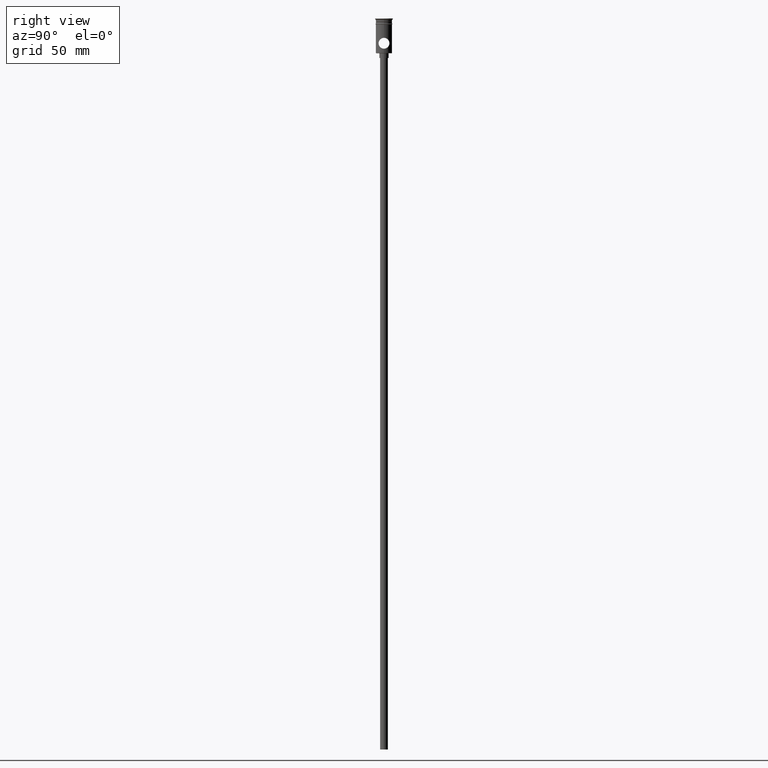
[diagram: clean part render]
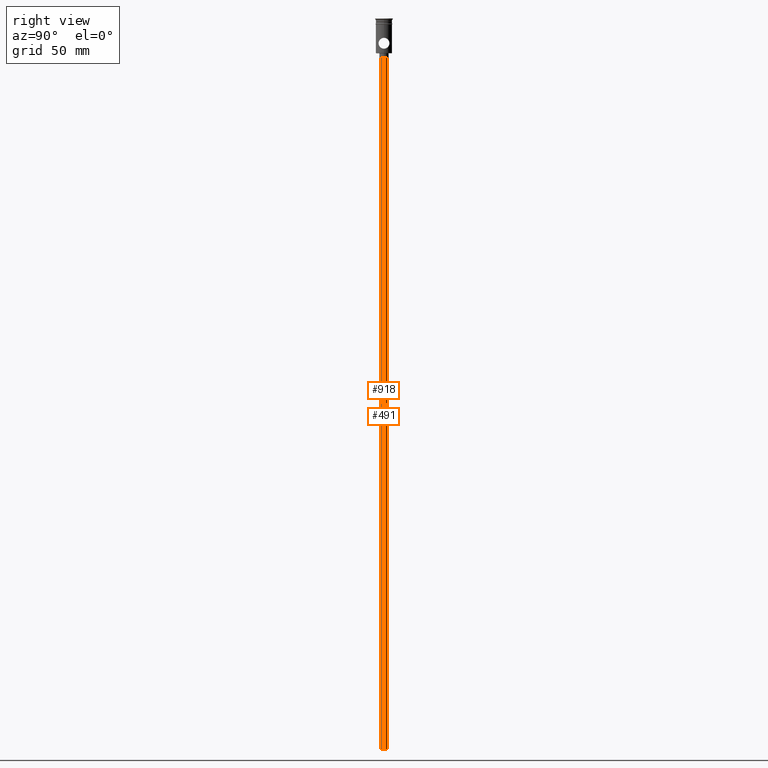
[diagram: same view with one multi-face feature highlighted, each face labeled with its STEP entity id]
A machine part, right view. The highlighted faces form ONE feature: a constant-radius fillet chain: 2 tangent blend faces with common blend radius 2.5 mm. The faces share edges in the B-rep.
Their STEP definitions:
[1] entity #491 (Cylinder):
#114 = AXIS2_PLACEMENT_3D ( 'NONE', #1199, #1090, #416 ) ;
#172 = VECTOR ( 'NONE', #207, 1000.000000000000000 ) ;
#185 = CARTESIAN_POINT ( 'NONE',  ( -2.500000000000000000, 3.061616997868383141E-16, -472.5000000000000568 ) ) ;
#207 = DIRECTION ( 'NONE',  ( -0.000000000000000000, -0.000000000000000000, 1.000000000000000000 ) ) ;
#244 = VERTEX_POINT ( 'NONE', #261 ) ;
#247 = DIRECTION ( 'NONE',  ( 0.000000000000000000, 0.000000000000000000, -1.000000000000000000 ) ) ;
#261 = CARTESIAN_POINT ( 'NONE',  ( 2.500000000000000000, 0.000000000000000000, -25.50000000000000000 ) ) ;
#273 = EDGE_LOOP ( 'NONE', ( #1022, #352, #845, #1259 ) ) ;
#324 = CARTESIAN_POINT ( 'NONE',  ( 2.500000000000000000, 0.000000000000000000, -472.5000000000000568 ) ) ;
#352 = ORIENTED_EDGE ( 'NONE', *, *, #499, .T. ) ;
#395 = CIRCLE ( 'NONE', #1456, 2.500000000000000000 ) ;
#415 = CYLINDRICAL_SURFACE ( 'NONE', #1073, 2.500000000000000000 ) ;
#416 = DIRECTION ( 'NONE',  ( -1.000000000000000000, 0.000000000000000000, 0.000000000000000000 ) ) ;
#425 = EDGE_CURVE ( 'NONE', #497, #244, #1007, .T. ) ;
#476 = DIRECTION ( 'NONE',  ( -1.000000000000000000, 0.000000000000000000, 0.000000000000000000 ) ) ;
#491 = ADVANCED_FACE ( 'NONE', ( #724 ), #415, .T. ) ;
#497 = VERTEX_POINT ( 'NONE', #975 ) ;
#499 = EDGE_CURVE ( 'NONE', #1204, #664, #754, .T. ) ;
#521 = DIRECTION ( 'NONE',  ( 1.000000000000000000, 0.000000000000000000, 0.000000000000000000 ) ) ;
#664 = VERTEX_POINT ( 'NONE', #1261 ) ;
#716 = CIRCLE ( 'NONE', #114, 2.500000000000000000 ) ;
#724 = FACE_OUTER_BOUND ( 'NONE', #273, .T. ) ;
#754 = LINE ( 'NONE', #185, #1289 ) ;
#837 = DIRECTION ( 'NONE',  ( -0.000000000000000000, -0.000000000000000000, 1.000000000000000000 ) ) ;
#845 = ORIENTED_EDGE ( 'NONE', *, *, #1137, .T. ) ;
#858 = DIRECTION ( 'NONE',  ( -0.000000000000000000, -0.000000000000000000, 1.000000000000000000 ) ) ;
#859 = EDGE_CURVE ( 'NONE', #1204, #497, #716, .T. ) ;
#928 = CARTESIAN_POINT ( 'NONE',  ( 0.000000000000000000, 0.000000000000000000, -25.50000000000000000 ) ) ;
#959 = CARTESIAN_POINT ( 'NONE',  ( 0.000000000000000000, 0.000000000000000000, -472.5000000000000568 ) ) ;
#975 = CARTESIAN_POINT ( 'NONE',  ( 2.500000000000000000, 0.000000000000000000, -472.5000000000000568 ) ) ;
#1007 = LINE ( 'NONE', #324, #172 ) ;
#1022 = ORIENTED_EDGE ( 'NONE', *, *, #859, .F. ) ;
#1073 = AXIS2_PLACEMENT_3D ( 'NONE', #959, #837, #521 ) ;
#1090 = DIRECTION ( 'NONE',  ( 0.000000000000000000, 0.000000000000000000, -1.000000000000000000 ) ) ;
#1137 = EDGE_CURVE ( 'NONE', #664, #244, #395, .T. ) ;
#1199 = CARTESIAN_POINT ( 'NONE',  ( 0.000000000000000000, 0.000000000000000000, -472.5000000000000568 ) ) ;
#1204 = VERTEX_POINT ( 'NONE', #1231 ) ;
#1231 = CARTESIAN_POINT ( 'NONE',  ( -2.500000000000000000, 3.061616997868383141E-16, -472.5000000000000568 ) ) ;
#1259 = ORIENTED_EDGE ( 'NONE', *, *, #425, .F. ) ;
#1261 = CARTESIAN_POINT ( 'NONE',  ( -2.500000000000000000, 3.061616997868383141E-16, -25.50000000000000000 ) ) ;
#1289 = VECTOR ( 'NONE', #858, 1000.000000000000000 ) ;
#1456 = AXIS2_PLACEMENT_3D ( 'NONE', #928, #247, #476 ) ;
[2] entity #918 (Cylinder):
#25 = EDGE_LOOP ( 'NONE', ( #678, #459, #1328, #929 ) ) ;
#75 = DIRECTION ( 'NONE',  ( 0.000000000000000000, 0.000000000000000000, -1.000000000000000000 ) ) ;
#89 = DIRECTION ( 'NONE',  ( -1.000000000000000000, 0.000000000000000000, 0.000000000000000000 ) ) ;
#172 = VECTOR ( 'NONE', #207, 1000.000000000000000 ) ;
#175 = AXIS2_PLACEMENT_3D ( 'NONE', #286, #75, #89 ) ;
#185 = CARTESIAN_POINT ( 'NONE',  ( -2.500000000000000000, 3.061616997868383141E-16, -472.5000000000000568 ) ) ;
#207 = DIRECTION ( 'NONE',  ( -0.000000000000000000, -0.000000000000000000, 1.000000000000000000 ) ) ;
#244 = VERTEX_POINT ( 'NONE', #261 ) ;
#261 = CARTESIAN_POINT ( 'NONE',  ( 2.500000000000000000, 0.000000000000000000, -25.50000000000000000 ) ) ;
#286 = CARTESIAN_POINT ( 'NONE',  ( 0.000000000000000000, 0.000000000000000000, -472.5000000000000568 ) ) ;
#308 = EDGE_CURVE ( 'NONE', #497, #1204, #564, .T. ) ;
#314 = CARTESIAN_POINT ( 'NONE',  ( 0.000000000000000000, 0.000000000000000000, -472.5000000000000568 ) ) ;
#324 = CARTESIAN_POINT ( 'NONE',  ( 2.500000000000000000, 0.000000000000000000, -472.5000000000000568 ) ) ;
#354 = CIRCLE ( 'NONE', #1171, 2.500000000000000000 ) ;
#425 = EDGE_CURVE ( 'NONE', #497, #244, #1007, .T. ) ;
#459 = ORIENTED_EDGE ( 'NONE', *, *, #308, .F. ) ;
#492 = DIRECTION ( 'NONE',  ( 0.000000000000000000, 0.000000000000000000, -1.000000000000000000 ) ) ;
#497 = VERTEX_POINT ( 'NONE', #975 ) ;
#499 = EDGE_CURVE ( 'NONE', #1204, #664, #754, .T. ) ;
#530 = CYLINDRICAL_SURFACE ( 'NONE', #1033, 2.500000000000000000 ) ;
#564 = CIRCLE ( 'NONE', #175, 2.500000000000000000 ) ;
#664 = VERTEX_POINT ( 'NONE', #1261 ) ;
#678 = ORIENTED_EDGE ( 'NONE', *, *, #499, .F. ) ;
#691 = CARTESIAN_POINT ( 'NONE',  ( 0.000000000000000000, 0.000000000000000000, -25.50000000000000000 ) ) ;
#748 = FACE_OUTER_BOUND ( 'NONE', #25, .T. ) ;
#754 = LINE ( 'NONE', #185, #1289 ) ;
#827 = DIRECTION ( 'NONE',  ( -1.000000000000000000, 0.000000000000000000, 0.000000000000000000 ) ) ;
#858 = DIRECTION ( 'NONE',  ( -0.000000000000000000, -0.000000000000000000, 1.000000000000000000 ) ) ;
#918 = ADVANCED_FACE ( 'NONE', ( #748 ), #530, .T. ) ;
#929 = ORIENTED_EDGE ( 'NONE', *, *, #1095, .T. ) ;
#975 = CARTESIAN_POINT ( 'NONE',  ( 2.500000000000000000, 0.000000000000000000, -472.5000000000000568 ) ) ;
#1007 = LINE ( 'NONE', #324, #172 ) ;
#1024 = DIRECTION ( 'NONE',  ( -0.000000000000000000, -0.000000000000000000, 1.000000000000000000 ) ) ;
#1033 = AXIS2_PLACEMENT_3D ( 'NONE', #314, #1024, #1330 ) ;
#1095 = EDGE_CURVE ( 'NONE', #244, #664, #354, .T. ) ;
#1171 = AXIS2_PLACEMENT_3D ( 'NONE', #691, #492, #827 ) ;
#1204 = VERTEX_POINT ( 'NONE', #1231 ) ;
#1231 = CARTESIAN_POINT ( 'NONE',  ( -2.500000000000000000, 3.061616997868383141E-16, -472.5000000000000568 ) ) ;
#1261 = CARTESIAN_POINT ( 'NONE',  ( -2.500000000000000000, 3.061616997868383141E-16, -25.50000000000000000 ) ) ;
#1289 = VECTOR ( 'NONE', #858, 1000.000000000000000 ) ;
#1328 = ORIENTED_EDGE ( 'NONE', *, *, #425, .T. ) ;
#1330 = DIRECTION ( 'NONE',  ( 1.000000000000000000, 0.000000000000000000, 0.000000000000000000 ) ) ;